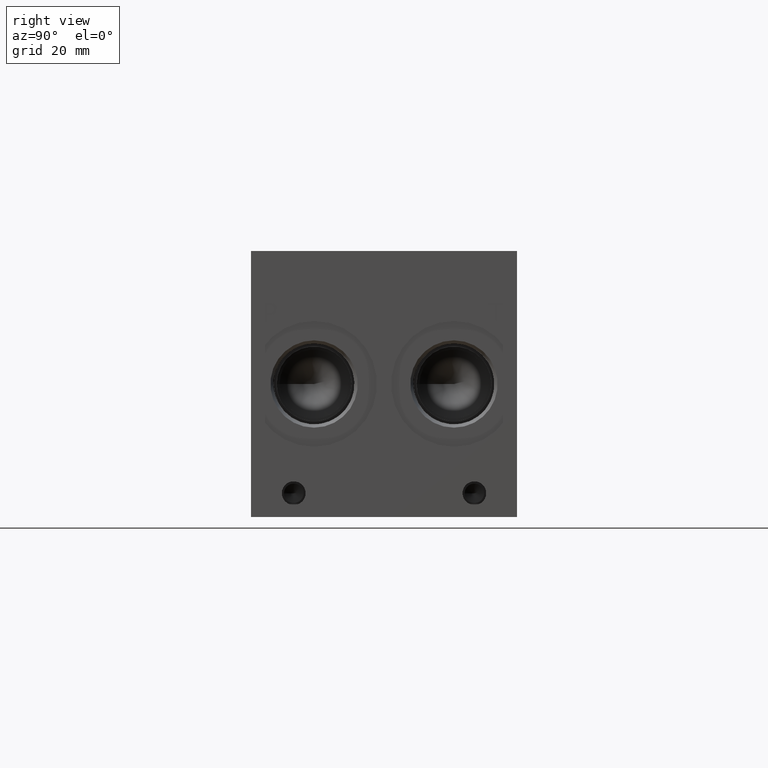
[diagram: clean part render]
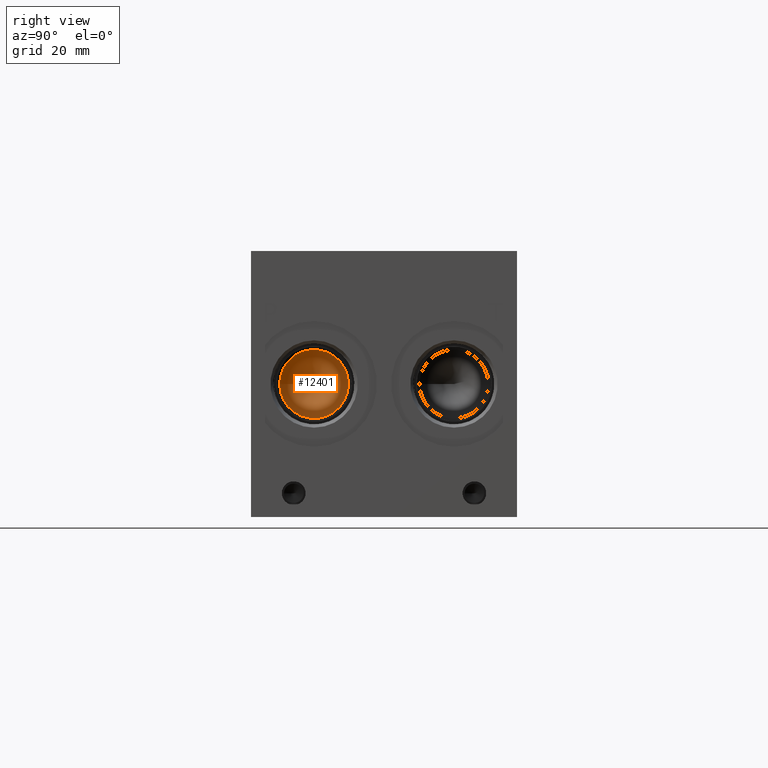
[diagram: same view with one face highlighted and labeled with its STEP entity id]
A machine part, right view. The second image highlights one B-rep face of the part: STEP entity #12401.
In plain terms, the highlighted conical surface has half-angle 60 deg.
Its self-contained STEP definition (entity closure, byte-faithful):
#130=CONICAL_SURFACE('',#13111,5.7531,1.0471975511966);
#359=CIRCLE('',#13112,11.5062);
#360=CIRCLE('',#13113,11.5062);
#1476=FACE_OUTER_BOUND('',#2195,.T.);
#2195=EDGE_LOOP('',(#10875,#10876,#10877,#10878));
#3354=LINE('',#21280,#4471);
#4471=VECTOR('',#15602,5.7531);
#5935=VERTEX_POINT('',#21276);
#5936=VERTEX_POINT('',#21277);
#5937=VERTEX_POINT('',#21279);
#7624=EDGE_CURVE('',#5935,#5936,#359,.T.);
#7625=EDGE_CURVE('',#5936,#5937,#3354,.T.);
#7626=EDGE_CURVE('',#5936,#5935,#360,.T.);
#10875=ORIENTED_EDGE('',*,*,#7624,.T.);
#10876=ORIENTED_EDGE('',*,*,#7625,.T.);
#10877=ORIENTED_EDGE('',*,*,#7625,.F.);
#10878=ORIENTED_EDGE('',*,*,#7626,.T.);
#12401=ADVANCED_FACE('',(#1476),#130,.F.);
#13111=AXIS2_PLACEMENT_3D('',#21275,#15598,#15599);
#13112=AXIS2_PLACEMENT_3D('',#21278,#15600,#15601);
#13113=AXIS2_PLACEMENT_3D('',#21281,#15603,#15604);
#15598=DIRECTION('center_axis',(1.,0.,0.));
#15599=DIRECTION('ref_axis',(0.,1.,0.));
#15600=DIRECTION('center_axis',(1.,0.,0.));
#15601=DIRECTION('ref_axis',(0.,1.,0.));
#15602=DIRECTION('',(-0.5,0.866025403784439,1.06057523872491E-16));
#15603=DIRECTION('center_axis',(1.,0.,0.));
#15604=DIRECTION('ref_axis',(0.,1.,0.));
#21275=CARTESIAN_POINT('Origin',(175.371226166325,21.082,44.45));
#21276=CARTESIAN_POINT('',(178.69278,32.5882,44.45));
#21277=CARTESIAN_POINT('',(178.69278,9.57579999999999,44.45));
#21278=CARTESIAN_POINT('Origin',(178.69278,21.082,44.45));
#21279=CARTESIAN_POINT('',(172.04967233265,21.082,44.45));
#21280=CARTESIAN_POINT('',(175.371226166325,15.3289,44.45));
#21281=CARTESIAN_POINT('Origin',(178.69278,21.082,44.45));